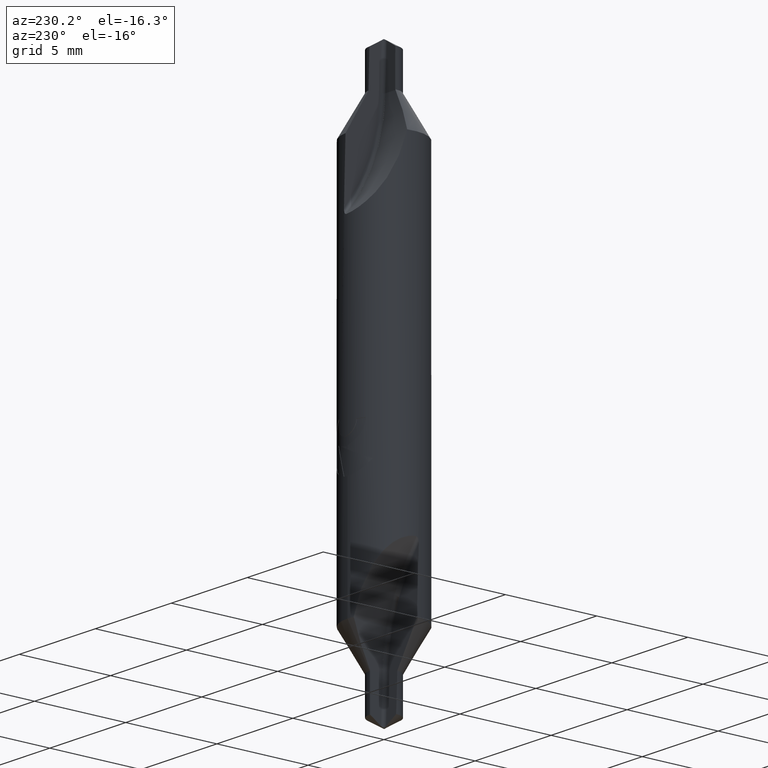
[diagram: clean part render]
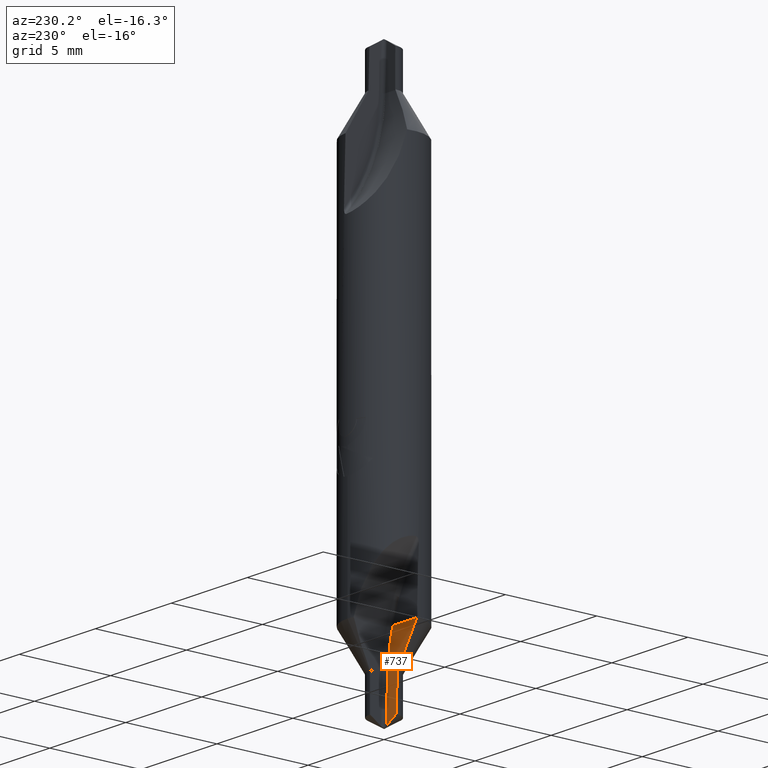
[diagram: same view with one face highlighted and labeled with its STEP entity id]
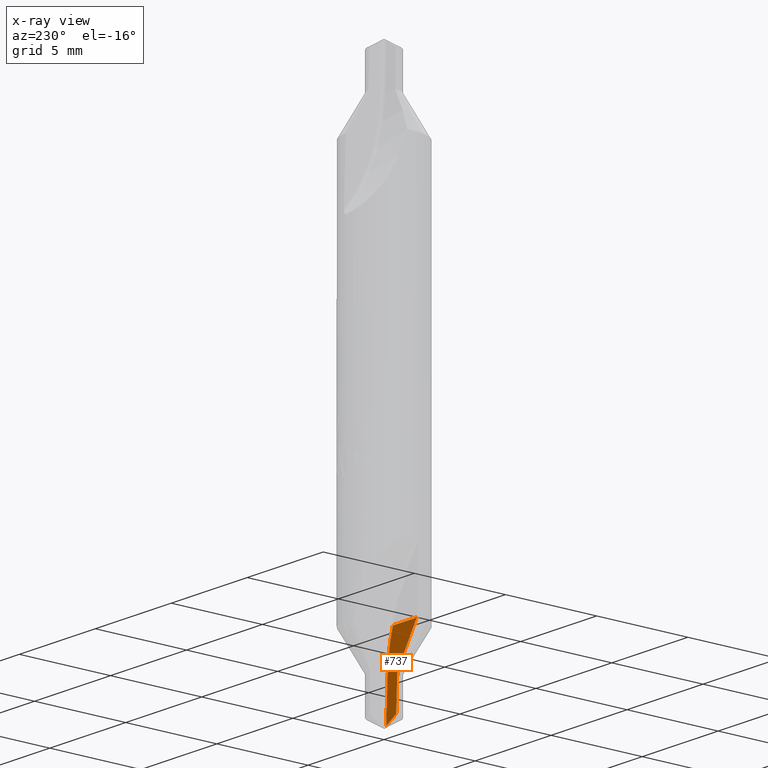
[diagram: x-ray of the same camera — body ghosted, the highlighted face saturated]
A machine part, auxiliary view. The second image highlights one B-rep face of the part: STEP entity #737.
The next image is the same camera in x-ray: the body ghosted, the highlighted face saturated — about 0% of this face is hidden behind the body in this view.
In plain terms, the highlighted planar face has unit normal (0, -0.9994, -0.0349).
Its self-contained STEP definition (entity closure, byte-faithful):
#407=VERTEX_POINT('',#1155);
#463=VERTEX_POINT('',#1218);
#501=VERTEX_POINT('',#1261);
#505=VERTEX_POINT('',#1266);
#591=VERTEX_POINT('',#1361);
#673=EDGE_CURVE('',#463,#407,#1447,.T.);
#691=EDGE_CURVE('',#407,#591,#1466,.T.);
#721=EDGE_CURVE('',#501,#733,#1499,.T.);
#733=VERTEX_POINT('',#1512);
#737=ADVANCED_FACE('',(#1516),#1517,.F.);
#821=EDGE_CURVE('',#501,#505,#1609,.T.);
#921=EDGE_CURVE('',#591,#733,#1718,.T.);
#957=EDGE_CURVE('',#505,#463,#1760,.T.);
#1155=CARTESIAN_POINT('',(-0.797187434418206,-0.0670238346091755,-27.9000000009174));
#1218=CARTESIAN_POINT('',(-1.99512163885703,-0.139605290905324,-25.8215390347779));
#1261=CARTESIAN_POINT('',(-0.16,-0.0669830053653202,-27.9011691974857));
#1266=CARTESIAN_POINT('',(-0.409659219780593,-0.139605290905325,-25.8215390347779));
#1361=CARTESIAN_POINT('',(-0.8,-1.34815450469894E-010,-29.8193115009174));
#1447=(B_SPLINE_CURVE(2,(#2761,#2762,#2763),.UNSPECIFIED.,.F.,.F.)B_SPLINE_CURVE_WITH_KNOTS((3,3),(0.0,2.40006550254292),.UNSPECIFIED.)RATIONAL_B_SPLINE_CURVE((1.0,1.10702606042768,1.0))BOUNDED_CURVE()REPRESENTATION_ITEM('')GEOMETRIC_REPRESENTATION_ITEM()CURVE());
#1466=ELLIPSE('',#2809,22.9229666782752,0.8);
#1499=LINE('',#2955,#2956);
#1512=CARTESIAN_POINT('',(-0.16,0.0134170266343002,-30.2035248777814));
#1516=FACE_OUTER_BOUND('',#2994,.T.);
#1517=PLANE('',#2995);
#1609=CIRCLE('',#3225,8.79692194);
#1718=(B_SPLINE_CURVE(2,(#3537,#3538,#3539,#3540,#3541,#3542,#3543,#3544,#3545,#3546,#3547),.UNSPECIFIED.,.F.,.F.)B_SPLINE_CURVE_WITH_KNOTS((3,1,1,1,1,1,1,1,1,3),(0.0,0.0174878699843544,0.044384907960545,0.122888183364203,0.355189577861274,0.904908474492678,1.4370762762604,1.71101926095556,1.81864620363617,1.85680597527256),.UNSPECIFIED.)RATIONAL_B_SPLINE_CURVE((1.0,1.43944375017664,2.53376058516746,5.05568982154648,11.8319630530159,23.9648516708425,24.6528352590432,13.5543550446286,5.47172202675916,1.95889740538907,1.0))BOUNDED_CURVE()REPRESENTATION_ITEM('')GEOMETRIC_REPRESENTATION_ITEM()CURVE());
#1760=LINE('',#3611,#3612);
#2761=CARTESIAN_POINT('',(-1.99512163885703,-0.139605290905324,-25.8215390347779));
#2762=CARTESIAN_POINT('',(-1.13924674718665,-0.0877454037967262,-27.3066118972432));
#2763=CARTESIAN_POINT('',(-0.797187434418205,-0.0670238346091756,-27.9000000009174));
#2809=AXIS2_PLACEMENT_3D('',#4403,#4404,#4405);
#2955=CARTESIAN_POINT('',(-0.16,-0.0669830053653202,-27.9011691974857));
#2956=VECTOR('',#4433,1.0);
#2994=EDGE_LOOP('',(#4448,#4449,#4450,#4451,#4452,#4453));
#2995=AXIS2_PLACEMENT_3D('',#4454,#4455,#4456);
#3225=AXIS2_PLACEMENT_3D('',#4553,#4554,#4555);
#3537=CARTESIAN_POINT('',(-0.8,-1.34815485164363E-010,-29.8193115009174));
#3538=CARTESIAN_POINT('',(-0.550535855840425,0.00523438510736169,-29.9692046824927));
#3539=CARTESIAN_POINT('',(-0.305215212483046,0.0103788462946934,-30.1165227760573));
#3540=CARTESIAN_POINT('',(-0.143982493312846,0.013754391964941,-30.2131857568385));
#3541=CARTESIAN_POINT('',(-0.0502048091093678,0.0156966671978271,-30.2688052423526));
#3542=CARTESIAN_POINT('',(-0.0107277963612444,0.0164303185960419,-30.2898142696132));
#3543=CARTESIAN_POINT('',(0.00847926839913516,0.0164502847101319,-30.2903860243134));
#3544=CARTESIAN_POINT('',(0.0410457546652188,0.0158808094388607,-30.2740783862069));
#3545=CARTESIAN_POINT('',(0.131722177024555,0.0140122493608232,-30.2205698265379));
#3546=CARTESIAN_POINT('',(0.400000000000001,0.00839300601813109,-30.0596557509182));
#3547=CARTESIAN_POINT('',(0.8,-1.34815485164363E-010,-29.8193115009174));
#3611=CARTESIAN_POINT('',(-4.47846097,-0.139605290905324,-25.8215390347779));
#3612=VECTOR('',#4760,1.0);
#4403=CARTESIAN_POINT('',(0.0,0.0,-29.819311504778));
#4404=DIRECTION('',(0.0,-0.999390827019096,-0.0348994967025007));
#4405=DIRECTION('',(0.0,0.0348994967025007,-0.999390827019096));
#4433=DIRECTION('',(0.0,0.0348994967025007,-0.999390827019096));
#4448=ORIENTED_EDGE('',*,*,#921,.F.);
#4449=ORIENTED_EDGE('',*,*,#691,.F.);
#4450=ORIENTED_EDGE('',*,*,#673,.F.);
#4451=ORIENTED_EDGE('',*,*,#957,.F.);
#4452=ORIENTED_EDGE('',*,*,#821,.F.);
#4453=ORIENTED_EDGE('',*,*,#721,.T.);
#4454=CARTESIAN_POINT('',(-8.95692194,0.0865210687532709,-32.2969507439052));
#4455=DIRECTION('',(0.0,-0.999390827019096,-0.0348994967025007));
#4456=DIRECTION('',(0.0,0.0348994967025007,-0.999390827019096));
#4553=CARTESIAN_POINT('',(-8.95692194,-0.0669830053653229,-27.9011691974857));
#4554=DIRECTION('',(0.0,-0.999390827019096,-0.0348994967025007));
#4555=DIRECTION('',(0.0,0.0348994967025007,-0.999390827019096));
#4760=DIRECTION('',(-1.0,-0.0,0.0));